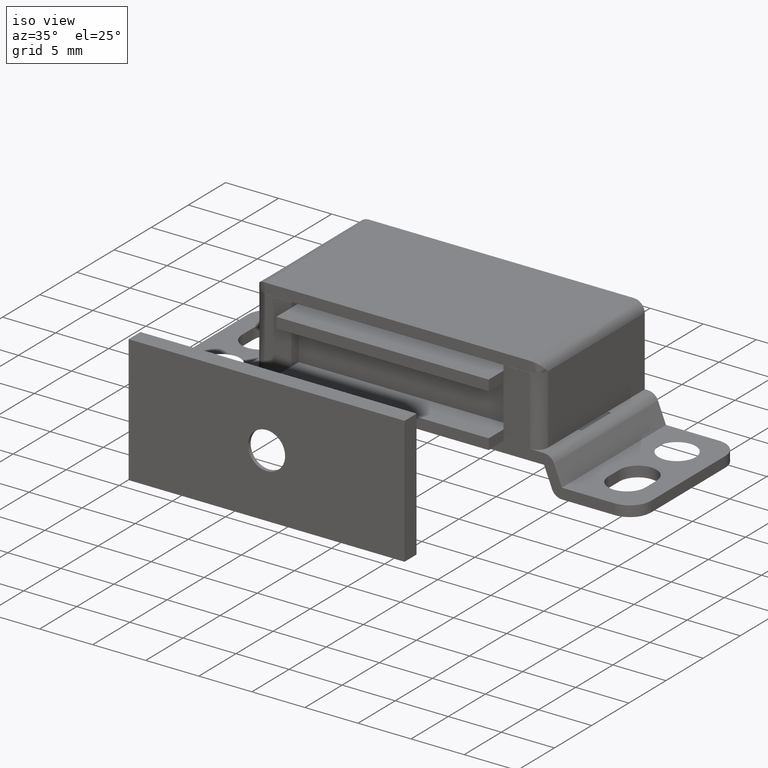
[diagram: clean part render]
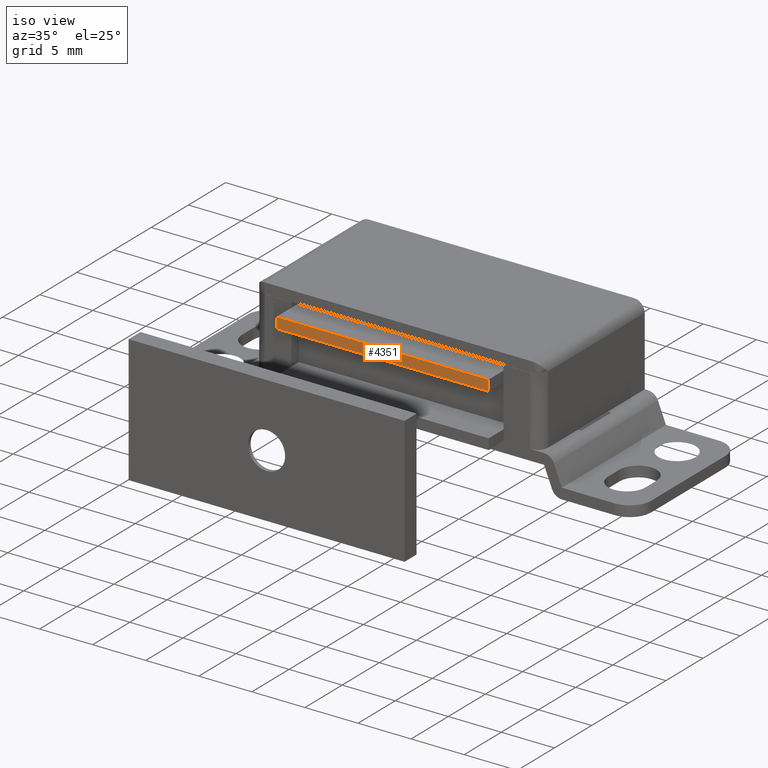
[diagram: same view with one face highlighted and labeled with its STEP entity id]
A machine part, iso view. The second image highlights one B-rep face of the part: STEP entity #4351.
In plain terms, the highlighted face is a freeform B-spline surface patch.
Its self-contained STEP definition (entity closure, byte-faithful):
#4316=CARTESIAN_POINT('',(-10.999000161036109,-16.0,9.549949998061805));
#4317=CARTESIAN_POINT('',(10.999004697478020,-16.0,9.549949998061805));
#4318=CARTESIAN_POINT('',(-10.999000161036109,-16.0,8.450049975116103));
#4319=CARTESIAN_POINT('',(10.999004697478020,-16.0,8.450049975116103));
#4320=B_SPLINE_SURFACE_WITH_KNOTS('',1,1,((#4316,#4318),(#4317,#4319)),.UNSPECIFIED.,.F.,.F.,.U.,(2,2),(2,2),(0.0,21.998004858514129),(0.041708334948495,0.958291687403247),.UNSPECIFIED.);
#4321=CARTESIAN_POINT('',(10.000004000000001,-16.0,8.500000000000000));
#4322=VERTEX_POINT('',#4321);
#4323=CARTESIAN_POINT('',(-10.0,-16.0,8.500000000000000));
#4324=VERTEX_POINT('',#4323);
#4325=CARTESIAN_POINT('',(10.000004000000001,-16.0,8.500000000000000));
#4326=CARTESIAN_POINT('',(-10.0,-16.0,8.500000000000000));
#4327=QUASI_UNIFORM_CURVE('',1,(#4325,#4326),.UNSPECIFIED.,.F.,.U.);
#4328=EDGE_CURVE('',#4322,#4324,#4327,.T.);
#4329=ORIENTED_EDGE('',*,*,#4328,.F.);
#4330=CARTESIAN_POINT('',(10.000004000000001,-16.0,9.500000000000000));
#4331=VERTEX_POINT('',#4330);
#4332=CARTESIAN_POINT('',(10.000004000000001,-16.0,9.500000000000000));
#4333=CARTESIAN_POINT('',(10.000004000000001,-16.0,8.500000000000000));
#4334=QUASI_UNIFORM_CURVE('',1,(#4332,#4333),.UNSPECIFIED.,.F.,.U.);
#4335=EDGE_CURVE('',#4331,#4322,#4334,.T.);
#4336=ORIENTED_EDGE('',*,*,#4335,.F.);
#4337=CARTESIAN_POINT('',(-10.0,-16.0,9.500000000000000));
#4338=VERTEX_POINT('',#4337);
#4339=CARTESIAN_POINT('',(-10.0,-16.0,9.500000000000000));
#4340=CARTESIAN_POINT('',(10.000004000000001,-16.0,9.500000000000000));
#4341=QUASI_UNIFORM_CURVE('',1,(#4339,#4340),.UNSPECIFIED.,.F.,.U.);
#4342=EDGE_CURVE('',#4338,#4331,#4341,.T.);
#4343=ORIENTED_EDGE('',*,*,#4342,.F.);
#4344=CARTESIAN_POINT('',(-10.0,-16.0,8.500000000000000));
#4345=CARTESIAN_POINT('',(-10.0,-16.0,9.500000000000000));
#4346=QUASI_UNIFORM_CURVE('',1,(#4344,#4345),.UNSPECIFIED.,.F.,.U.);
#4347=EDGE_CURVE('',#4324,#4338,#4346,.T.);
#4348=ORIENTED_EDGE('',*,*,#4347,.F.);
#4349=EDGE_LOOP('',(#4329,#4336,#4343,#4348));
#4350=FACE_OUTER_BOUND('',#4349,.T.);
#4351=ADVANCED_FACE('',(#4350),#4320,.F.);